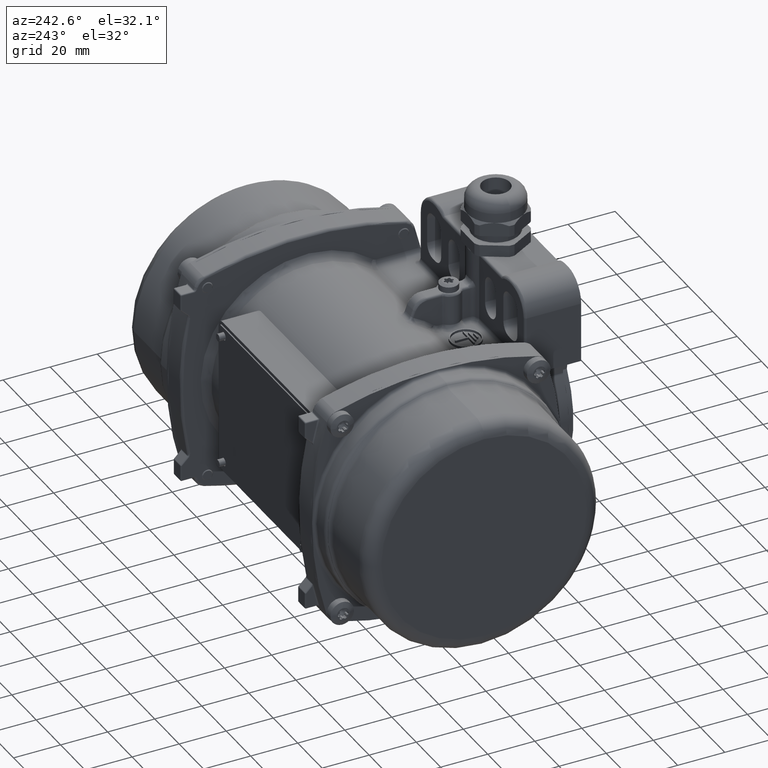
[diagram: clean part render]
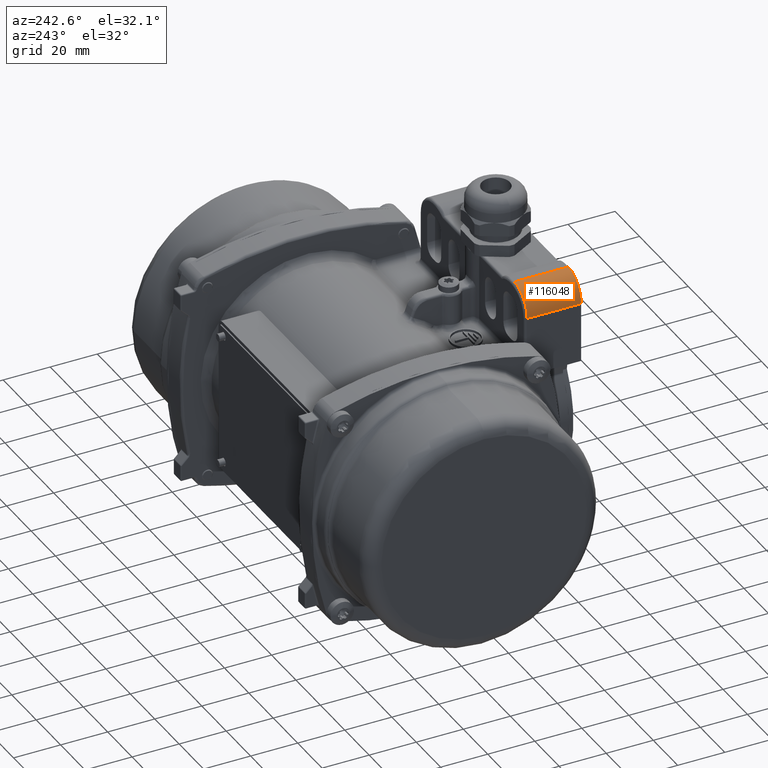
[diagram: same view with one face highlighted and labeled with its STEP entity id]
A machine part, auxiliary view. The second image highlights one B-rep face of the part: STEP entity #116048.
In plain terms, the highlighted cylindrical surface (edge-blend (fillet) strip) has radius 10.5 mm, axis along (0, 1, 0).
Its self-contained STEP definition (entity closure, byte-faithful):
#101 = B_SPLINE_CURVE_WITH_KNOTS ( 'NONE', 3,
 ( #104363, #75476, #103563, #48749, #95283, #94458, #48321, #38842, #114249, #57812 ),
 .UNSPECIFIED., .F., .F.,
 ( 4, 2, 2, 2, 4 ),
 ( 0.0000000000000000000, 0.2500000000000000000, 0.5000000000000000000, 0.7500000000000000000, 1.000000000000000000 ),
 .UNSPECIFIED. ) ;
#2118 = EDGE_CURVE ( 'NONE', #27128, #6802, #101, .T. ) ;
#4058 = DIRECTION ( 'NONE',  ( 6.767073999999999800E-016, 1.000000000000000000, 2.960595000000000100E-016 ) ) ;
#4790 = CARTESIAN_POINT ( 'NONE',  ( -37.78799929389443000, -70.00000000000000000, 62.17475707771972500 ) ) ;
#6802 = VERTEX_POINT ( 'NONE', #97661 ) ;
#10229 = B_SPLINE_CURVE_WITH_KNOTS ( 'NONE', 3,
 ( #23773, #62065, #60841, #98335, #70272, #80563, #4790, #71074, #14674, #79768 ),
 .UNSPECIFIED., .F., .F.,
 ( 4, 2, 2, 2, 4 ),
 ( 0.0000000000000000000, 0.2500000000000000000, 0.5000000000000000000, 0.7500000000000000000, 1.000000000000000000 ),
 .UNSPECIFIED. ) ;
#11310 = LINE ( 'NONE', #94521, #89449 ) ;
#13817 = EDGE_CURVE ( 'NONE', #6802, #34900, #11310, .T. ) ;
#14674 = CARTESIAN_POINT ( 'NONE',  ( -33.87444678594552300, -70.00000000000000000, 63.50000000000000000 ) ) ;
#22270 = EDGE_LOOP ( 'NONE', ( #53461, #109362, #116003, #106850 ) ) ;
#22625 = VERTEX_POINT ( 'NONE', #37825 ) ;
#23773 = CARTESIAN_POINT ( 'NONE',  ( -43.00000000000000000, -70.00000000000000000, 53.00000000000000000 ) ) ;
#27128 = VERTEX_POINT ( 'NONE', #49469 ) ;
#34900 = VERTEX_POINT ( 'NONE', #99968 ) ;
#37825 = CARTESIAN_POINT ( 'NONE',  ( -32.50000000000000000, -70.00000000000000000, 63.50000000000000000 ) ) ;
#38842 = CARTESIAN_POINT ( 'NONE',  ( -42.72671310501731800, -47.00000000000000700, 55.74835278577244700 ) ) ;
#42166 = DIRECTION ( 'NONE',  ( -1.000000000000000000, 6.608470384673550000E-016, 0.0000000000000000000 ) ) ;
#45237 = CYLINDRICAL_SURFACE ( 'NONE', #67723, 10.50000000000000200 ) ;
#48321 = CARTESIAN_POINT ( 'NONE',  ( -41.67475707771970400, -47.00000000000000000, 58.28799929389445800 ) ) ;
#48749 = CARTESIAN_POINT ( 'NONE',  ( -37.78799929389442300, -46.99999999999999300, 62.17475707771971100 ) ) ;
#49469 = CARTESIAN_POINT ( 'NONE',  ( -32.50000000000000000, -47.00000000000000000, 63.50000000000000000 ) ) ;
#52476 = DIRECTION ( 'NONE',  ( 6.767073999999999800E-016, 1.000000000000000000, 2.960595000000000100E-016 ) ) ;
#53461 = ORIENTED_EDGE ( 'NONE', *, *, #2118, .T. ) ;
#57812 = CARTESIAN_POINT ( 'NONE',  ( -43.00000000000000000, -47.00000000000000000, 53.00000000000000000 ) ) ;
#60104 = CARTESIAN_POINT ( 'NONE',  ( -32.50000000000000000, -46.00000000000000000, 63.50000000000000000 ) ) ;
#60841 = CARTESIAN_POINT ( 'NONE',  ( -42.72671310501735300, -70.00000000000000000, 55.74835278577244000 ) ) ;
#62065 = CARTESIAN_POINT ( 'NONE',  ( -43.00000000000002100, -69.99999999999998600, 54.37444678594553000 ) ) ;
#67723 = AXIS2_PLACEMENT_3D ( 'NONE', #108930, #52476, #42166 ) ;
#70272 = CARTESIAN_POINT ( 'NONE',  ( -40.89650184518090000, -70.00000000000000000, 59.45274055973661100 ) ) ;
#71074 = CARTESIAN_POINT ( 'NONE',  ( -35.24835278577244000, -70.00000000000001400, 63.22671310501731800 ) ) ;
#75476 = CARTESIAN_POINT ( 'NONE',  ( -33.87444678594550100, -46.99999999999997900, 63.49999999999998600 ) ) ;
#79768 = CARTESIAN_POINT ( 'NONE',  ( -32.50000000000000000, -70.00000000000000000, 63.50000000000000000 ) ) ;
#80411 = VECTOR ( 'NONE', #4058, 1000.000000000000000 ) ;
#80563 = CARTESIAN_POINT ( 'NONE',  ( -38.95274055973659700, -70.00000000000001400, 61.39650184518090700 ) ) ;
#82819 = EDGE_CURVE ( 'NONE', #22625, #27128, #105553, .T. ) ;
#88007 = FACE_OUTER_BOUND ( 'NONE', #22270, .T. ) ;
#89337 = EDGE_CURVE ( 'NONE', #34900, #22625, #10229, .T. ) ;
#89449 = VECTOR ( 'NONE', #113468, 1000.000000000000000 ) ;
#94458 = CARTESIAN_POINT ( 'NONE',  ( -40.89650184518090000, -47.00000000000000700, 59.45274055973662500 ) ) ;
#94521 = CARTESIAN_POINT ( 'NONE',  ( -43.00000000000000000, -23.95674163437095300, 53.00000000000000000 ) ) ;
#95283 = CARTESIAN_POINT ( 'NONE',  ( -38.95274055973659000, -47.00000000000000700, 61.39650184518091400 ) ) ;
#97661 = CARTESIAN_POINT ( 'NONE',  ( -43.00000000000000000, -47.00000000000000000, 53.00000000000000000 ) ) ;
#98335 = CARTESIAN_POINT ( 'NONE',  ( -41.67475707771970400, -70.00000000000000000, 58.28799929389445100 ) ) ;
#99968 = CARTESIAN_POINT ( 'NONE',  ( -43.00000000000000000, -70.00000000000000000, 53.00000000000000000 ) ) ;
#103563 = CARTESIAN_POINT ( 'NONE',  ( -35.24835278577242500, -47.00000000000000700, 63.22671310501731800 ) ) ;
#104363 = CARTESIAN_POINT ( 'NONE',  ( -32.50000000000000000, -47.00000000000000000, 63.50000000000000000 ) ) ;
#105553 = LINE ( 'NONE', #60104, #80411 ) ;
#106850 = ORIENTED_EDGE ( 'NONE', *, *, #82819, .T. ) ;
#108930 = CARTESIAN_POINT ( 'NONE',  ( -32.50000000000000000, -46.00000000000000000, 53.00000000000000000 ) ) ;
#109362 = ORIENTED_EDGE ( 'NONE', *, *, #13817, .T. ) ;
#113468 = DIRECTION ( 'NONE',  ( -0.0000000000000000000, -1.000000000000000000, -0.0000000000000000000 ) ) ;
#114249 = CARTESIAN_POINT ( 'NONE',  ( -43.00000000000000000, -47.00000000000000000, 54.37444678594554400 ) ) ;
#116003 = ORIENTED_EDGE ( 'NONE', *, *, #89337, .T. ) ;
#116048 = ADVANCED_FACE ( 'NONE', ( #88007 ), #45237, .T. ) ;